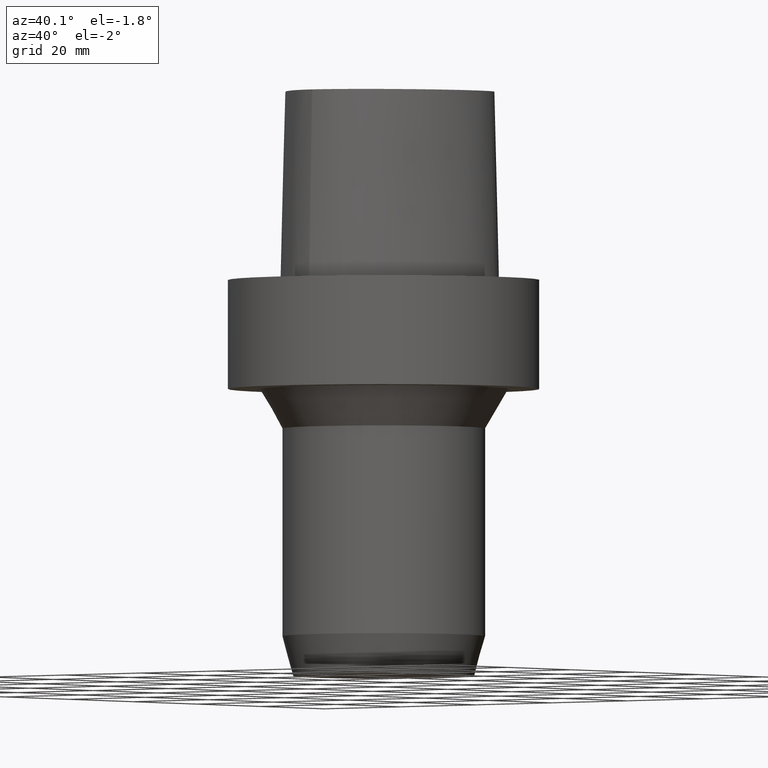
[diagram: clean part render]
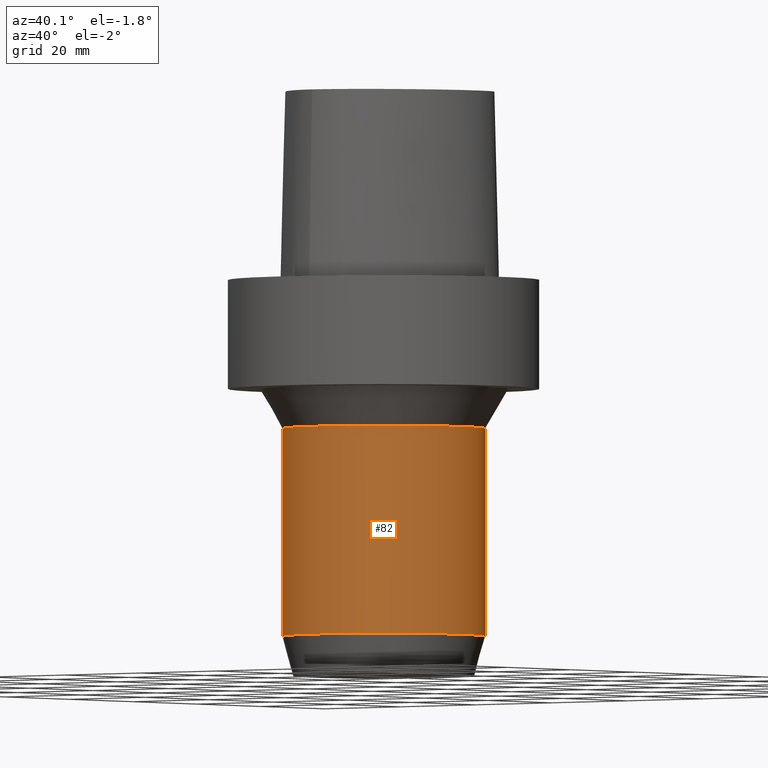
[diagram: same view with one face highlighted and labeled with its STEP entity id]
A machine part, auxiliary view. The second image highlights one B-rep face of the part: STEP entity #82.
In plain terms, the highlighted cylindrical surface (bore or boss wall) has radius 20.5 mm, axis along (0, 0, -1).
Its self-contained STEP definition (entity closure, byte-faithful):
#82=ADVANCED_FACE('',(#103,#104),#105,.T.);
#103=FACE_BOUND('',#269,.T.);
#104=FACE_BOUND('',#270,.T.);
#105=CYLINDRICAL_SURFACE('',#271,20.5);
#269=EDGE_LOOP('',(#316));
#270=EDGE_LOOP('',(#317));
#271=AXIS2_PLACEMENT_3D('',#318,#319,#320);
#316=ORIENTED_EDGE('',*,*,#347,.F.);
#317=ORIENTED_EDGE('',*,*,#346,.T.);
#318=CARTESIAN_POINT('',(3.12284933764275E-015,6.24569867528551E-015,-50.9999999970114));
#319=DIRECTION('',(6.12323399573677E-017,1.22464679914735E-016,-1.0));
#320=DIRECTION('',(-1.23259516440783E-032,1.0,1.22464679914735E-016));
#346=EDGE_CURVE('',#367,#367,#368,.T.);
#347=EDGE_CURVE('',#369,#369,#370,.T.);
#367=VERTEX_POINT('',#458);
#368=CIRCLE('',#459,20.5);
#369=VERTEX_POINT('',#460);
#370=CIRCLE('',#461,20.5);
#458=CARTESIAN_POINT('',(4.40872847632497E-015,20.5,-71.9999999901114));
#459=AXIS2_PLACEMENT_3D('',#478,#479,#480);
#460=CARTESIAN_POINT('',(1.83697019896054E-015,20.5,-30.0000000039115));
#461=AXIS2_PLACEMENT_3D('',#481,#482,#483);
#478=CARTESIAN_POINT('',(4.40872847632497E-015,8.81745695264994E-015,-71.9999999901114));
#479=DIRECTION('',(-6.12323399573677E-017,-1.22464679914735E-016,1.0));
#480=DIRECTION('',(-1.23259516440783E-032,1.0,1.22464679914735E-016));
#481=CARTESIAN_POINT('',(1.83697019896054E-015,3.67394039792107E-015,-30.0000000039115));
#482=DIRECTION('',(-6.12323399573677E-017,-1.22464679914735E-016,1.0));
#483=DIRECTION('',(-1.23259516440783E-032,1.0,1.22464679914735E-016));